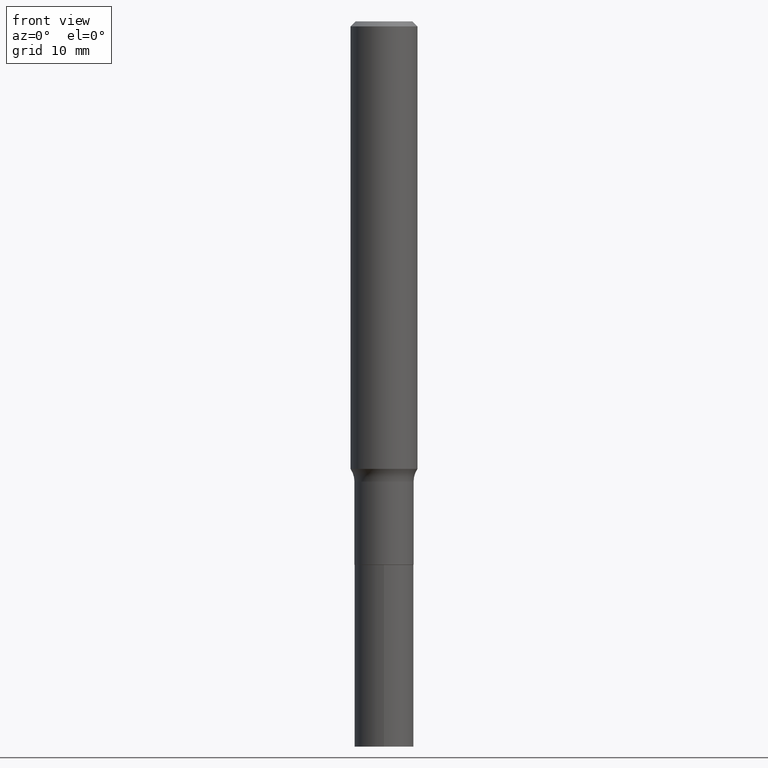
[diagram: clean part render]
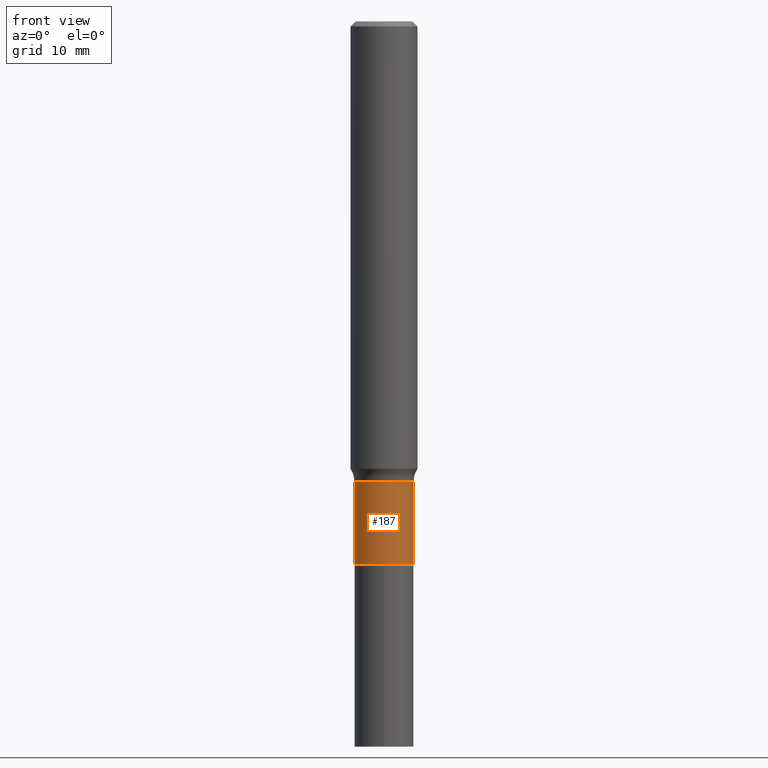
[diagram: same view with one face highlighted and labeled with its STEP entity id]
A machine part, front view. The second image highlights one B-rep face of the part: STEP entity #187.
In plain terms, the highlighted cylindrical surface (edge-blend (fillet) strip) has radius 2.6505 mm, axis along (-0, 0, 1).
Its self-contained STEP definition (entity closure, byte-faithful):
#10 = AXIS2_PLACEMENT_3D ( 'NONE', #62, #424, #246 ) ;
#19 = ORIENTED_EDGE ( 'NONE', *, *, #459, .F. ) ;
#25 = CARTESIAN_POINT ( 'NONE',  ( 3.970952247483424919E-29, -5.669467398013499815E-15, -1.623800000000000132 ) ) ;
#27 = DIRECTION ( 'NONE',  ( -2.445468806185136597E-29, 3.491481338843145583E-15, 1.000000000000000000 ) ) ;
#29 = DIRECTION ( 'NONE',  ( -2.445468806185136597E-29, 3.491481338843145583E-15, 1.000000000000000000 ) ) ;
#30 = DIRECTION ( 'NONE',  ( -2.445468806185136877E-29, 3.491481338843145188E-15, 1.000000000000000000 ) ) ;
#37 = AXIS2_PLACEMENT_3D ( 'NONE', #25, #29, #216 ) ;
#62 = CARTESIAN_POINT ( 'NONE',  ( 0.000000000000000000, 0.000000000000000000, 0.000000000000000000 ) ) ;
#64 = CARTESIAN_POINT ( 'NONE',  ( -0.1043499999999999844, -5.439168921254473222E-15, -1.916600000000000303 ) ) ;
#73 = EDGE_CURVE ( 'NONE', #190, #166, #218, .T. ) ;
#95 = AXIS2_PLACEMENT_3D ( 'NONE', #98, #27, #292 ) ;
#98 = CARTESIAN_POINT ( 'NONE',  ( 4.686985513934433368E-29, -6.691773134026774115E-15, -1.916600000000000303 ) ) ;
#101 = CYLINDRICAL_SURFACE ( 'NONE', #10, 0.1043499999999999706 ) ;
#113 = CIRCLE ( 'NONE', #37, 0.1043499999999999567 ) ;
#116 = EDGE_LOOP ( 'NONE', ( #365, #188, #238, #19 ) ) ;
#139 = LINE ( 'NONE', #281, #364 ) ;
#154 = EDGE_CURVE ( 'NONE', #395, #190, #358, .T. ) ;
#166 = VERTEX_POINT ( 'NONE', #458 ) ;
#186 = EDGE_CURVE ( 'NONE', #395, #261, #139, .T. ) ;
#187 = ADVANCED_FACE ( 'NONE', ( #242 ), #101, .T. ) ;
#188 = ORIENTED_EDGE ( 'NONE', *, *, #154, .T. ) ;
#190 = VERTEX_POINT ( 'NONE', #307 ) ;
#216 = DIRECTION ( 'NONE',  ( 1.000000000000000000, -6.982962677686265922E-15, 0.000000000000000000 ) ) ;
#218 = LINE ( 'NONE', #244, #465 ) ;
#238 = ORIENTED_EDGE ( 'NONE', *, *, #73, .T. ) ;
#242 = FACE_OUTER_BOUND ( 'NONE', #116, .T. ) ;
#244 = CARTESIAN_POINT ( 'NONE',  ( 0.1043499999999999706, -7.286721554165617206E-16, 5.088290465543058008E-30 ) ) ;
#246 = DIRECTION ( 'NONE',  ( 1.000000000000000000, -6.982962677686266711E-15, 4.876176775795936353E-29 ) ) ;
#261 = VERTEX_POINT ( 'NONE', #452 ) ;
#281 = CARTESIAN_POINT ( 'NONE',  ( -0.1043499999999999706, 7.414513447656643348E-16, -5.132908766680992704E-30 ) ) ;
#287 = DIRECTION ( 'NONE',  ( -2.445468806185136877E-29, 3.491481338843145188E-15, 1.000000000000000000 ) ) ;
#292 = DIRECTION ( 'NONE',  ( 1.000000000000000000, -6.982962677686263555E-15, 0.000000000000000000 ) ) ;
#307 = CARTESIAN_POINT ( 'NONE',  ( 0.1043499999999999844, -7.420445289443335737E-15, -1.916600000000000303 ) ) ;
#358 = CIRCLE ( 'NONE', #95, 0.1043499999999999844 ) ;
#364 = VECTOR ( 'NONE', #287, 39.37007874015748143 ) ;
#365 = ORIENTED_EDGE ( 'NONE', *, *, #186, .F. ) ;
#395 = VERTEX_POINT ( 'NONE', #64 ) ;
#424 = DIRECTION ( 'NONE',  ( -2.445468806185136597E-29, 3.491481338843145583E-15, 1.000000000000000000 ) ) ;
#452 = CARTESIAN_POINT ( 'NONE',  ( -0.1043499999999999567, -5.439168921254473222E-15, -1.623800000000000132 ) ) ;
#458 = CARTESIAN_POINT ( 'NONE',  ( 0.1043499999999999567, -6.398139553430061437E-15, -1.623800000000000132 ) ) ;
#459 = EDGE_CURVE ( 'NONE', #261, #166, #113, .T. ) ;
#465 = VECTOR ( 'NONE', #30, 39.37007874015748143 ) ;